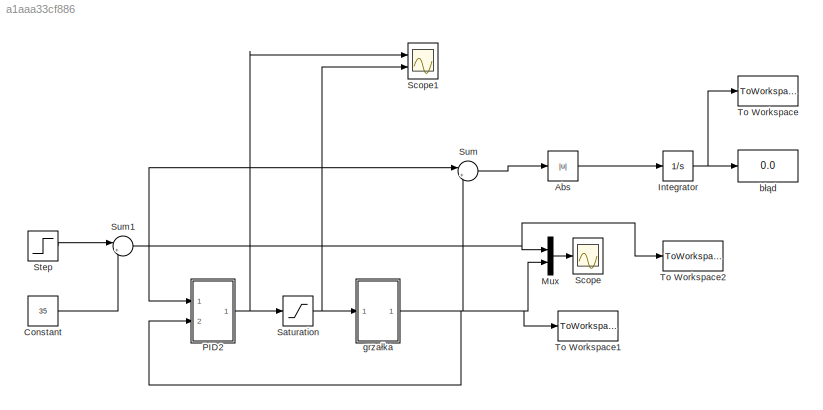
MODEL slx_a1aaa33cf886
KIND model
CONFIG AbsTol = auto
CONFIG FixedStep = 1.0
CONFIG MaxStep = auto
CONFIG MinStep = auto
CONFIG RelTol = 1e-3
CONFIG SampleTimeConstraint = Unconstrained
CONFIG Solver = ode3
CONFIG SolverMode = Auto
CONFIG SolverName = ode3
CONFIG StartTime = 0.0
CONFIG StopTime = 2000
BLOCK [Abs] Abs
  SaturateOnIntegerOverflow = off
BLOCK [Constant] Constant
  Value = 35
BLOCK [Integrator] Integrator
  Ports = [1, 1]
BLOCK [Mux] Mux
  DisplayOption = bar
  Inputs = 2
  Ports = [2, 1]
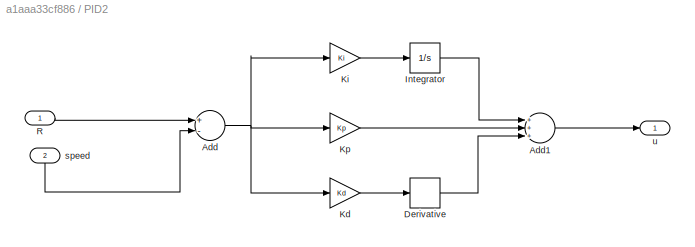
BLOCK [SubSystem] PID2
  Ports = [2, 1]
  RequestExecContextInheritance = off
BLOCK [Sum] PID2/Add
  InputSameDT = off
  Inputs = +-
  OutDataTypeStr = Inherit: Inherit via internal rule
  Ports = [2, 1]
  SaturateOnIntegerOverflow = off
BLOCK [Sum] PID2/Add1
  InputSameDT = off
  Inputs = +++
  OutDataTypeStr = Inherit: Inherit via internal rule
  Ports = [3, 1]
  SaturateOnIntegerOverflow = off
BLOCK [Derivative] PID2/Derivative
BLOCK [Integrator] PID2/Integrator
  Ports = [1, 1]
BLOCK [Gain] PID2/Kd
  Gain = Kd
  OutDataTypeStr = Inherit: Inherit via internal rule
  ParamDataTypeStr = Inherit: Inherit via internal rule
  SaturateOnIntegerOverflow = off
BLOCK [Gain] PID2/Ki 
  Gain = Ki
  OutDataTypeStr = Inherit: Inherit via internal rule
  ParamDataTypeStr = Inherit: Inherit via internal rule
  SaturateOnIntegerOverflow = off
BLOCK [Gain] PID2/Kp
  Gain = Kp
  OutDataTypeStr = Inherit: Inherit via internal rule
  ParamDataTypeStr = Inherit: Inherit via internal rule
  SaturateOnIntegerOverflow = off
BLOCK [Inport] PID2/R 
  IconDisplay = Port number
BLOCK [Inport] PID2/speed
  IconDisplay = Port number
  Port = 2
BLOCK [Outport] PID2/u
  IconDisplay = Port number
BLOCK [Saturate] Saturation
  InputPortMap = u0
  LowerLimit = 0
  Ports = [1, 1]
  UpperLimit = 400
  ZeroCross = off
BLOCK [Scope] Scope
  Floating = off
  NumInputPorts = 1
  Ports = [1]
  TimeRange = 4.302162424094797
BLOCK [Scope] Scope1
  Floating = off
  NumInputPorts = 2
  Ports = [2]
  SaveName = ScopeData1
  TimeRange = 4.302162424094797
  YMax = 5~5
  YMin = -5~-5
BLOCK [Step] Step
  After = 5
  SampleTime = 0
  Time = 200
BLOCK [Sum] Sum
  IconShape = round
  InputSameDT = off
  Inputs = |+-
  OutDataTypeStr = Inherit: Inherit via internal rule
  Ports = [2, 1]
  SaturateOnIntegerOverflow = off
BLOCK [Sum] Sum1
  IconShape = round
  InputSameDT = off
  Inputs = |++
  OutDataTypeStr = Inherit: Inherit via internal rule
  Ports = [2, 1]
  SaturateOnIntegerOverflow = off
BLOCK [ToWorkspace] To Workspace
  FixptAsFi = on
  MaxDataPoints = inf
  Ports = [1]
  SampleTime = -1
  Save2DSignal = 3-D array (concatenate along third dimension)
  VariableName = V
BLOCK [ToWorkspace] To Workspace1
  FixptAsFi = on
  MaxDataPoints = inf
  Ports = [1]
  SampleTime = -1
  Save2DSignal = 3-D array (concatenate along third dimension)
  SaveFormat = Structure With Time
  VariableName = plot1
BLOCK [ToWorkspace] To Workspace2
  FixptAsFi = on
  MaxDataPoints = inf
  Ports = [1]
  SampleTime = -1
  Save2DSignal = 3-D array (concatenate along third dimension)
  SaveFormat = Structure With Time
  VariableName = plot2
BLOCK [Display] błąd 
  Decimation = 1
  Ports = [1]
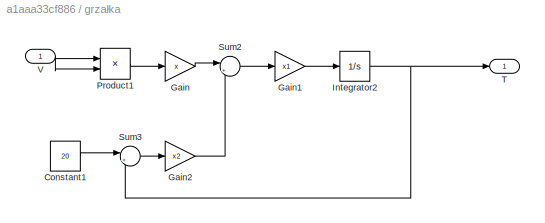
BLOCK [SubSystem] grzałka 
  Ports = [1, 1]
  RequestExecContextInheritance = off
BLOCK [Constant] grzałka /Constant1
  Value = 20
BLOCK [Gain] grzałka /Gain
  Gain = x
  OutDataTypeStr = Inherit: Inherit via internal rule
  ParamDataTypeStr = Inherit: Inherit via internal rule
  SaturateOnIntegerOverflow = off
BLOCK [Gain] grzałka /Gain1
  Gain = x1
  OutDataTypeStr = Inherit: Inherit via internal rule
  ParamDataTypeStr = Inherit: Inherit via internal rule
  SaturateOnIntegerOverflow = off
BLOCK [Gain] grzałka /Gain2
  Gain = x2
  OutDataTypeStr = Inherit: Inherit via internal rule
  ParamDataTypeStr = Inherit: Inherit via internal rule
  SaturateOnIntegerOverflow = off
BLOCK [Integrator] grzałka /Integrator2
  InitialCondition = 60
  Ports = [1, 1]
BLOCK [Product] grzałka /Product1
  InputSameDT = off
  OutDataTypeStr = Inherit: Inherit via internal rule
  Ports = [2, 1]
  RndMeth = Floor
  SaturateOnIntegerOverflow = off
BLOCK [Sum] grzałka /Sum2
  IconShape = round
  InputSameDT = off
  Inputs = |++
  OutDataTypeStr = Inherit: Inherit via internal rule
  Ports = [2, 1]
  SaturateOnIntegerOverflow = off
BLOCK [Sum] grzałka /Sum3
  IconShape = round
  InputSameDT = off
  Inputs = |+-
  OutDataTypeStr = Inherit: Inherit via internal rule
  Ports = [2, 1]
  SaturateOnIntegerOverflow = off
BLOCK [Outport] grzałka /T
  IconDisplay = Port number
BLOCK [Inport] grzałka /V 
  IconDisplay = Port number
LINE Abs:1 -> Integrator:1
LINE Constant:1 -> Sum1:2
NET Integrator:1 -> To Workspace:1, błąd :1
LINE Mux:1 -> Scope:1
LINE PID2/Add1:1 -> PID2/u:1
NET PID2/Add:1 -> PID2/Kd:1, PID2/Ki :1, PID2/Kp:1
LINE PID2/Derivative:1 -> PID2/Add1:3
LINE PID2/Integrator:1 -> PID2/Add1:1
LINE PID2/Kd:1 -> PID2/Derivative:1
LINE PID2/Ki :1 -> PID2/Integrator:1
LINE PID2/Kp:1 -> PID2/Add1:2
LINE PID2/R :1 -> PID2/Add:1
LINE PID2/speed:1 -> PID2/Add:2
NET PID2:1 -> Saturation:1, Scope1:1
NET Saturation:1 -> Scope1:2, grzałka :1
LINE Step:1 -> Sum1:1
NET Sum1:1 -> Mux:1, PID2:1, Sum:1, To Workspace2:1
LINE Sum:1 -> Abs:1
LINE grzałka /Constant1:1 -> grzałka /Sum3:1
LINE grzałka /Gain1:1 -> grzałka /Integrator2:1
LINE grzałka /Gain2:1 -> grzałka /Sum2:2
LINE grzałka /Gain:1 -> grzałka /Sum2:1
NET grzałka /Integrator2:1 -> grzałka /Sum3:2, grzałka /T:1
LINE grzałka /Product1:1 -> grzałka /Gain:1
LINE grzałka /Sum2:1 -> grzałka /Gain1:1
LINE grzałka /Sum3:1 -> grzałka /Gain2:1
NET grzałka /V :1 -> grzałka /Product1:1, grzałka /Product1:2
NET grzałka :1 -> Mux:2, PID2:2, Sum:2, To Workspace1:1
note: NET lines group one-source signal fan-out (src -> all destinations, sorted); 1:1 wires keep LINE
